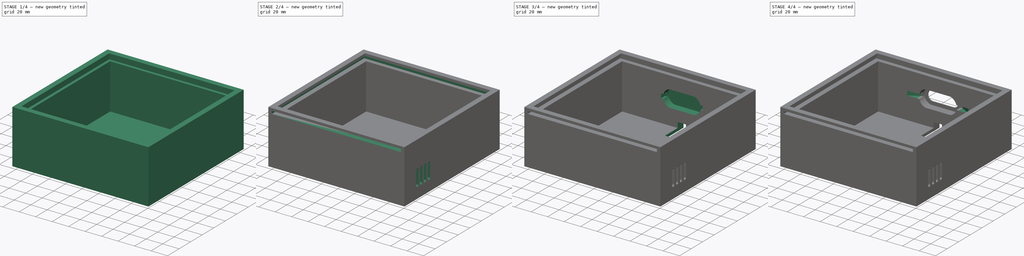
[diagram: build sequence overview — one tinted view per stage of 4, left to right]
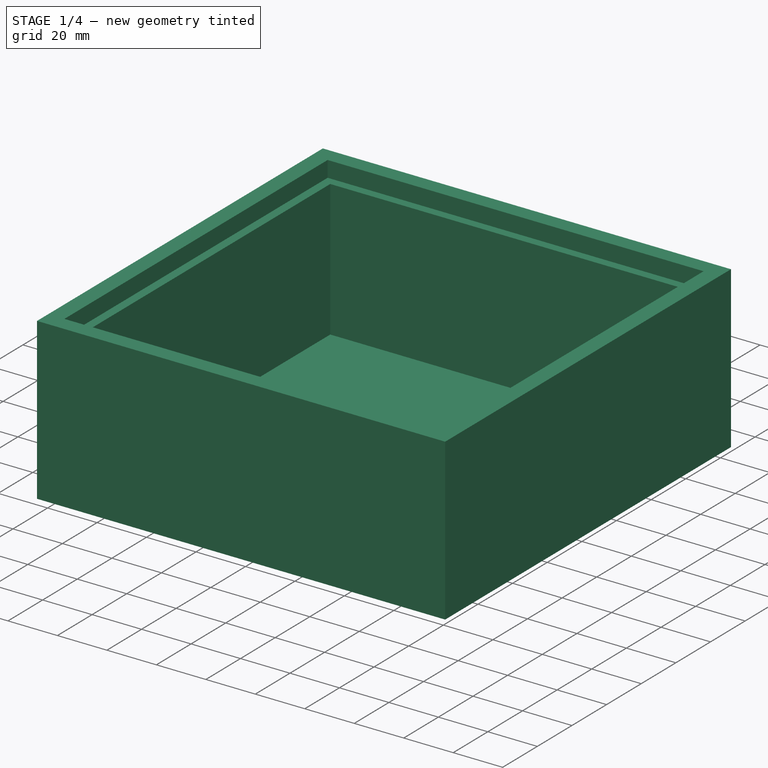
[diagram: stage 1 of 4 — iso view after this stage's code; geometry added in this stage tinted green]
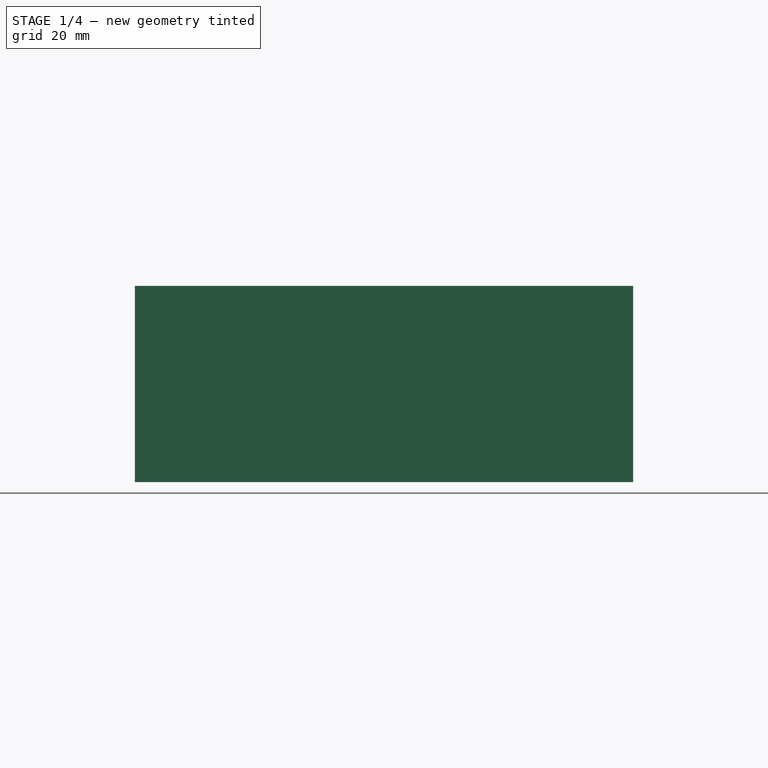
[diagram: stage 1 of 4 — front view after this stage's code; geometry added in this stage tinted green]
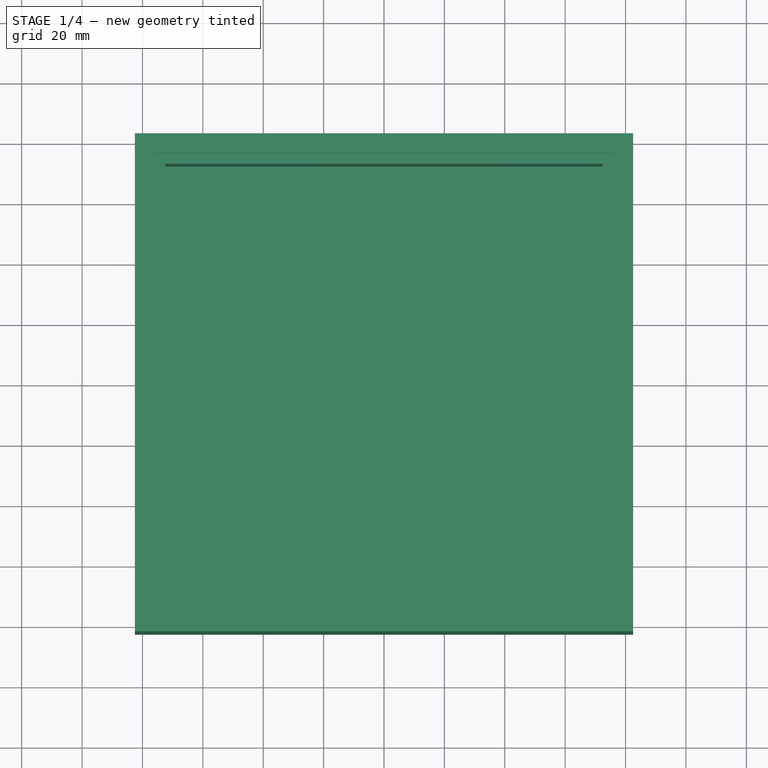
[diagram: stage 1 of 4 — top view after this stage's code; geometry added in this stage tinted green]
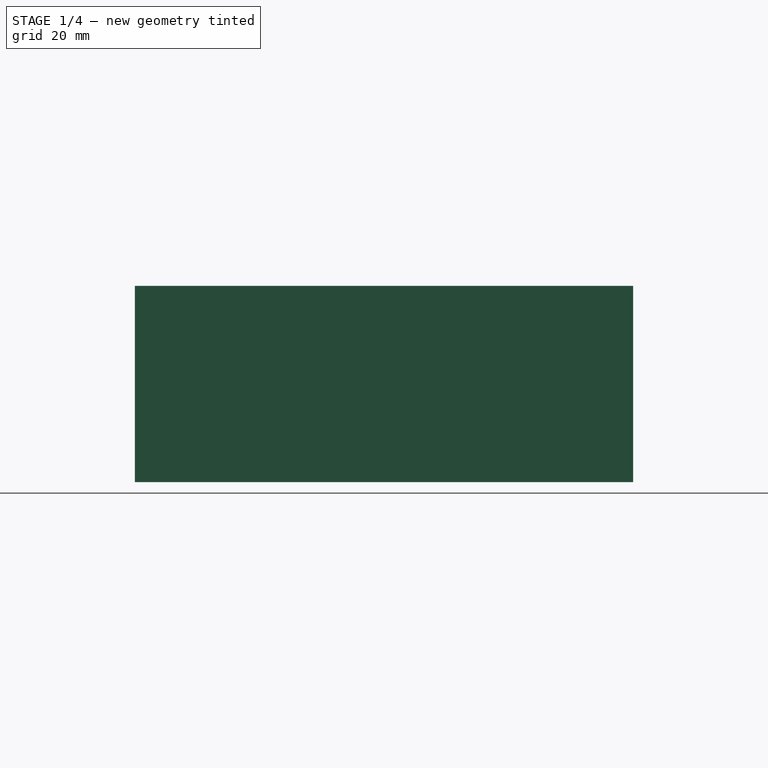
[diagram: stage 1 of 4 — right view after this stage's code; geometry added in this stage tinted green]
FCSTD DOCUMENT  (FreeCAD 1.0R39285 (Git))
Label: Box10
License: All rights reserved
LicenseURL: https://en.wikipedia.org/wiki/All_rights_reserved
objects: Sketcher::SketchObject×10, PartDesign::Pocket×8, PartDesign::Chamfer×2, PartDesign::Pad×1, PartDesign::LinearPattern×1, PartDesign::Body×1
note: 56 computed .brp shape members not serialized (recipe doc carries the construction recipe); baked Part::Feature solids carry a one-line shape summary decoded from their .brp

FEATURE [Sketcher::SketchObject] Sketch
  ArcFitTolerance = 1e-06
  AttachmentSupport = -> [XY_Plane]
  FullyConstrained = true
  MakeInternals = false
  MapMode = 5
  sketch-geometry (5):
    g0: LineSegment StartX=-82.5 StartY=-82.5 StartZ=0 EndX=82.5 EndY=-82.5 EndZ=0
    g1: LineSegment StartX=82.5 StartY=-82.5 StartZ=0 EndX=82.5 EndY=82.5 EndZ=0
    g2: LineSegment StartX=82.5 StartY=82.5 StartZ=0 EndX=-82.5 EndY=82.5 EndZ=0
    g3: LineSegment StartX=-82.5 StartY=82.5 StartZ=0 EndX=-82.5 EndY=-82.5 EndZ=0
    g4: GeomPoint [constr] X=0 Y=0 Z=0
  constraints (12):
    c: Coincident(g0,g1)
    c: Coincident(g1,g2)
    c: Coincident(g2,g3)
    c: Coincident(g3,g0)
    c: Horizontal(g0)
    c: Horizontal(g2)
    c: Vertical(g1)
    c: Vertical(g3)
    c: Symmetric(g2,g0,g4)
    c: Distance(g1,g3) = 165
    c: Distance(g0,g2) = 165
    c: Coincident(g4,g-1)
FEATURE [PartDesign::Pad] Pad
  Direction = (0,0,1)
  Length = 65
  Length2 = 10
  Profile = -> Sketch
  ReferenceAxis = -> Sketch [N_Axis]
  Refine = true
  Suppressed = false
  Type = 0
FEATURE [Sketcher::SketchObject] Sketch001
  ArcFitTolerance = 1e-06
  AttachmentSupport = -> [Pad]
  FullyConstrained = true
  MakeInternals = false
  MapMode = 5
  Placement = pos=(0,0,65) rot=(0,0,1;0rad)
FEATURE [Sketcher::SketchObject] Sketch002  label="Lithograpy edge"
  ArcFitTolerance = 1e-06
  AttachmentSupport = -> [Pad]
  FullyConstrained = true
  MakeInternals = false
  MapMode = 5
  Placement = pos=(0,0,65) rot=(0,0,1;0rad)
  sketch-geometry (5):
    g0: LineSegment StartX=-76 StartY=-76 StartZ=0 EndX=76 EndY=-76 EndZ=0
    g1: LineSegment StartX=76 StartY=-76 StartZ=0 EndX=76 EndY=76 EndZ=0
    g2: LineSegment StartX=76 StartY=76 StartZ=0 EndX=-76 EndY=76 EndZ=0
    g3: LineSegment StartX=-76 StartY=76 StartZ=0 EndX=-76 EndY=-76 EndZ=0
    g4: GeomPoint [constr] X=0 Y=0 Z=0
  constraints (12):
    c: Coincident(g0,g1)
    c: Coincident(g1,g2)
    c: Coincident(g2,g3)
    c: Coincident(g3,g0)
    c: Horizontal(g0)
    c: Horizontal(g2)
    c: Vertical(g1)
    c: Vertical(g3)
    c: Symmetric(g2,g0,g4)
    c: Distance(g1,g3) = 152
    c: Distance(g0,g2) = 152
    c: Coincident(g4,g-1)
FEATURE [PartDesign::Pocket] Pocket
  BaseFeature = -> Pad
  Direction = (0,0,-1)
  Length = 6.5
  Length2 = 5
  Profile = -> Sketch002
  ReferenceAxis = -> Sketch002 [N_Axis]
  Refine = true
  Suppressed = false
  Type = 0
FEATURE [Sketcher::SketchObject] Sketch003  label="Light edge"
  ArcFitTolerance = 1e-06
  AttachmentSupport = -> [Pocket]
  FullyConstrained = true
  MakeInternals = false
  MapMode = 5
  Placement = pos=(0,0,58.5) rot=(0,0,1;0rad)
  sketch-geometry (5):
    g0: LineSegment StartX=-72.5 StartY=-72.5 StartZ=0 EndX=72.5 EndY=-72.5 EndZ=0
    g1: LineSegment StartX=72.5 StartY=-72.5 StartZ=0 EndX=72.5 EndY=72.5 EndZ=0
    g2: LineSegment StartX=72.5 StartY=72.5 StartZ=0 EndX=-72.5 EndY=72.5 EndZ=0
    g3: LineSegment StartX=-72.5 StartY=72.5 StartZ=0 EndX=-72.5 EndY=-72.5 EndZ=0
    g4: GeomPoint [constr] X=0 Y=0 Z=0
  constraints (12):
    c: Coincident(g0,g1)
    c: Coincident(g1,g2)
    c: Coincident(g2,g3)
    c: Coincident(g3,g0)
    c: Horizontal(g0)
    c: Horizontal(g2)
    c: Vertical(g1)
    c: Vertical(g3)
    c: Symmetric(g2,g0,g4)
    c: Distance(g1,g3) = 145
    c: Distance(g0,g2) = 145
    c: Coincident(g4,g-1)
FEATURE [PartDesign::Pocket] Pocket001
  BaseFeature = -> Pocket
  Direction = (0,0,-1)
  Length = 55
  Length2 = 5
  Profile = -> Sketch003
  ReferenceAxis = -> Sketch003 [N_Axis]
  Refine = true
  Suppressed = false
  Type = 0
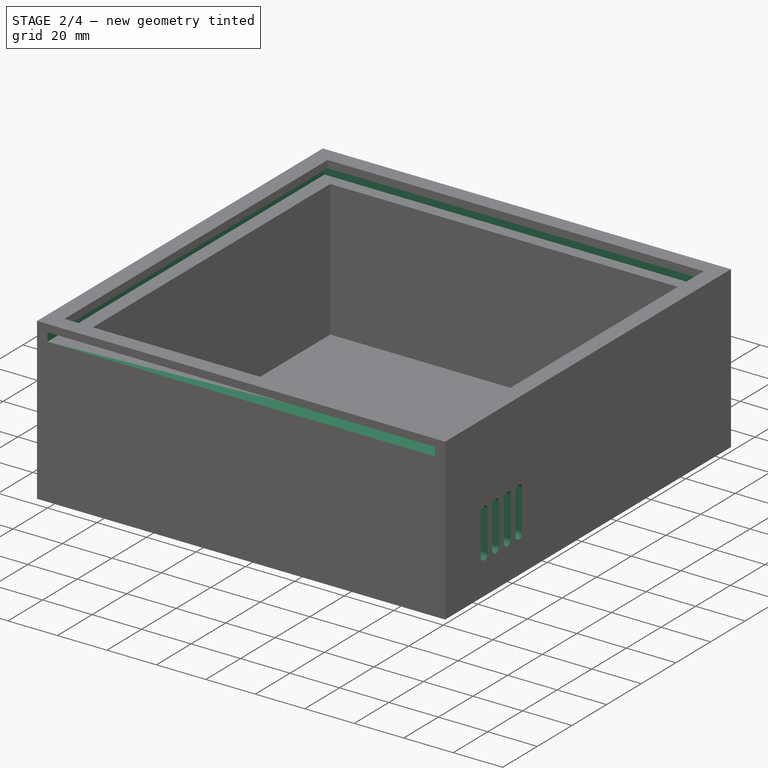
[diagram: stage 2 of 4 — iso view after this stage's code; geometry added in this stage tinted green]
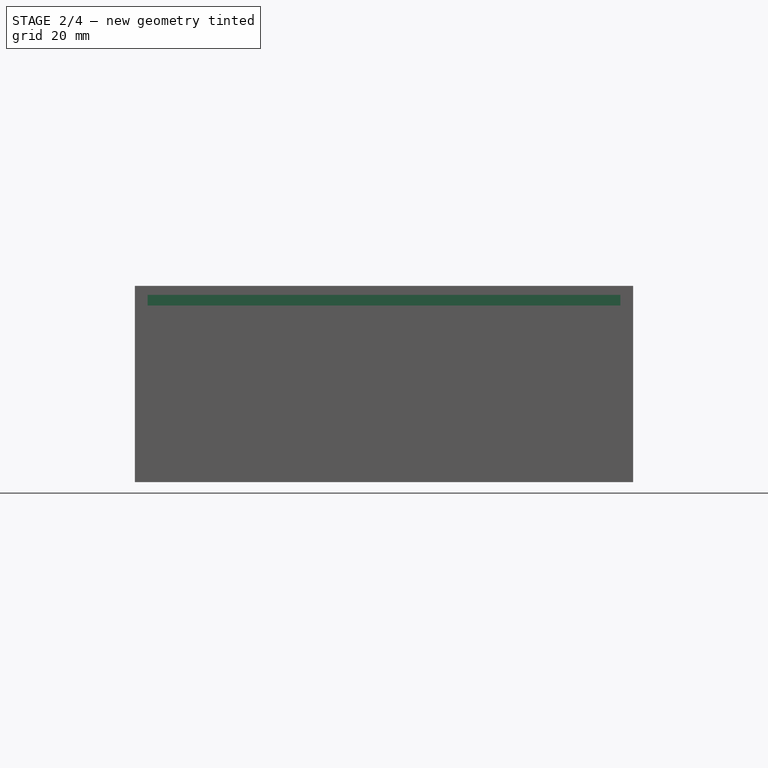
[diagram: stage 2 of 4 — front view after this stage's code; geometry added in this stage tinted green]
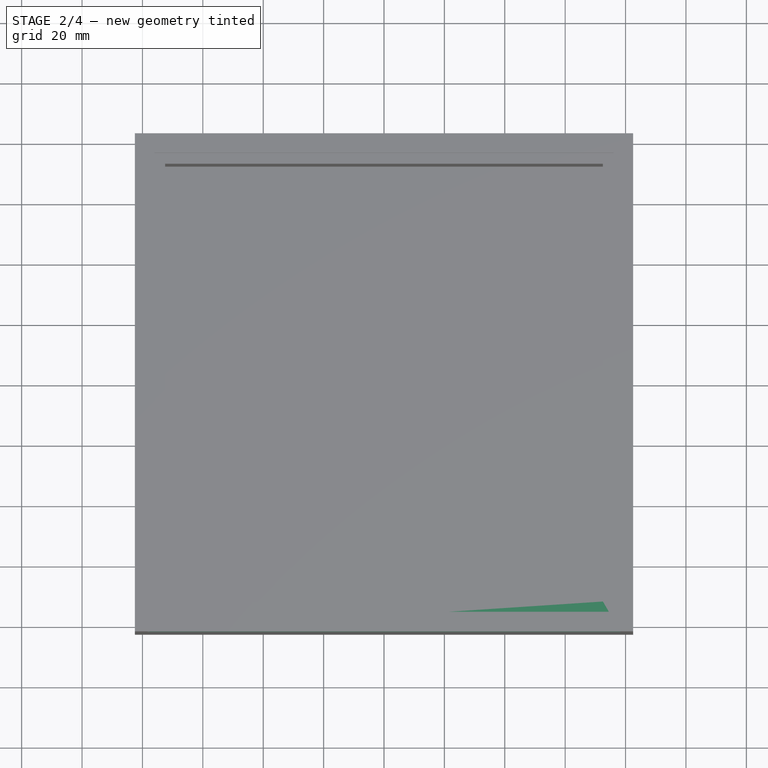
[diagram: stage 2 of 4 — top view after this stage's code; geometry added in this stage tinted green]
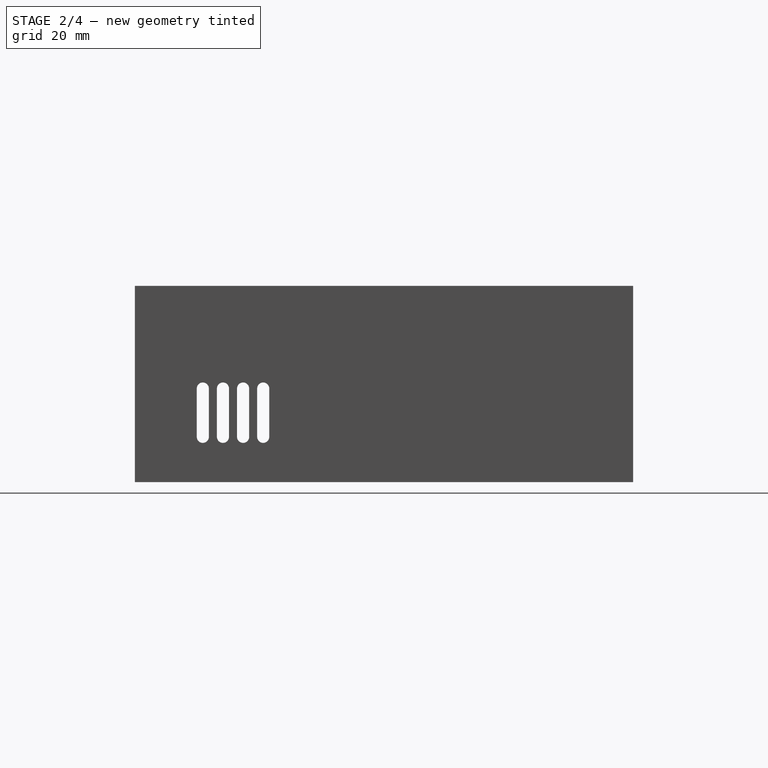
[diagram: stage 2 of 4 — right view after this stage's code; geometry added in this stage tinted green]
FEATURE [Sketcher::SketchObject] Sketch005  label="Lithography sliding slot"
  ArcFitTolerance = 1e-06
  FullyConstrained = true
  MakeInternals = false
  MapMode = 5
  Placement = pos=(0,-82.5,0) rot=(1,0,0;1.5708rad)
  sketch-geometry (5):
    g0: LineSegment StartX=-78.3 StartY=58.5 StartZ=0 EndX=78.3 EndY=58.5 EndZ=0
    g1: LineSegment StartX=78.3 StartY=58.5 StartZ=0 EndX=78.3 EndY=62 EndZ=0
    g2: LineSegment StartX=78.3 StartY=62 StartZ=0 EndX=-78.3 EndY=62 EndZ=0
    g3: LineSegment StartX=-78.3 StartY=62 StartZ=0 EndX=-78.3 EndY=58.5 EndZ=0
    g4: GeomPoint [constr] X=0 Y=60.25 Z=0
  constraints (13):
    c: Coincident(g0,g1)
    c: Coincident(g1,g2)
    c: Coincident(g2,g3)
    c: Coincident(g3,g0)
    c: Horizontal(g0)
    c: Horizontal(g2)
    c: Vertical(g1)
    c: Vertical(g3)
    c: Symmetric(g2,g0,g4)
    c: Distance(g1,g3) = 156.6
    c: Distance(g0,g2) = 3.5
    c: PointOnObject(g4,g-2)
    c: Distance(g-3,g0) = 6.5
FEATURE [PartDesign::Pocket] Pocket003
  BaseFeature = -> Pocket001
  Direction = (0,1,-2e-16)
  Length = 160
  Length2 = 5
  Profile = -> Sketch005
  ReferenceAxis = -> Sketch005 [N_Axis]
  Refine = true
  Suppressed = false
  Type = 0
FEATURE [Sketcher::SketchObject] Sketch007  label="Ventilation holes"
  ArcFitTolerance = 1e-06
  AttachmentSupport = -> [Pocket003]
  FullyConstrained = true
  MakeInternals = false
  MapMode = 5
  Placement = pos=(-82.5,0,0) rot=(0.57735,-0.57735,-0.57735;2.0944rad)
  sketch-geometry (4):
    g0: ArcOfCircle CenterX=60 CenterY=15 CenterZ=0 NormalX=0 NormalY=0 NormalZ=1 AngleXU=0 Radius=2 StartAngle=3.14159 EndAngle=6.28319
    g1: ArcOfCircle CenterX=60 CenterY=31 CenterZ=0 NormalX=0 NormalY=0 NormalZ=1 AngleXU=0 Radius=2 StartAngle=-9e-16 EndAngle=3.14159
    g2: LineSegment StartX=58 StartY=15 StartZ=0 EndX=58 EndY=31 EndZ=0
    g3: LineSegment StartX=62 StartY=15 StartZ=0 EndX=62 EndY=31 EndZ=0
  constraints (10):
    c: Tangent(g0,g2) = 1.5708
    c: Tangent(g0,g3) = -1.5708
    c: Tangent(g1,g2) = 1.5708
    c: Tangent(g1,g3) = -1.5708
    c: Equal(g0,g1)
    c: Vertical(g3)
    c: Distance(g0,g1) = 16
    c: Radius(g0) = 2
    c: DistanceX(g1,g-1) = -60
    c: DistanceY(g-1,g0) = 15
FEATURE [PartDesign::Pocket] Pocket004
  BaseFeature = -> Pocket003
  Direction = (1,0,0)
  Length = 5
  Length2 = 5
  Profile = -> Sketch007
  ReferenceAxis = -> Sketch007 [N_Axis]
  Refine = true
  Suppressed = false
  Type = 1
FEATURE [PartDesign::LinearPattern] LinearPattern
  BaseFeature = -> Pocket004
  Direction = -> Y_Axis
  Length = 20
  Mode = 0
  Occurrences = 4
  Offset = 6.66667
  Originals = -> [Pocket004]
  Refine = true
  Suppressed = false
  TransformMode = 0
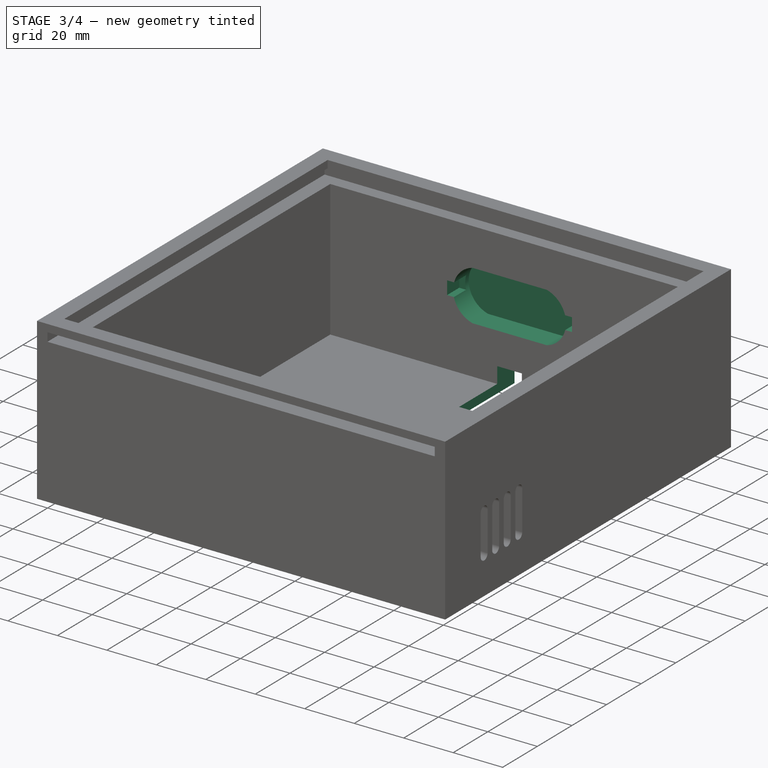
[diagram: stage 3 of 4 — iso view after this stage's code; geometry added in this stage tinted green]
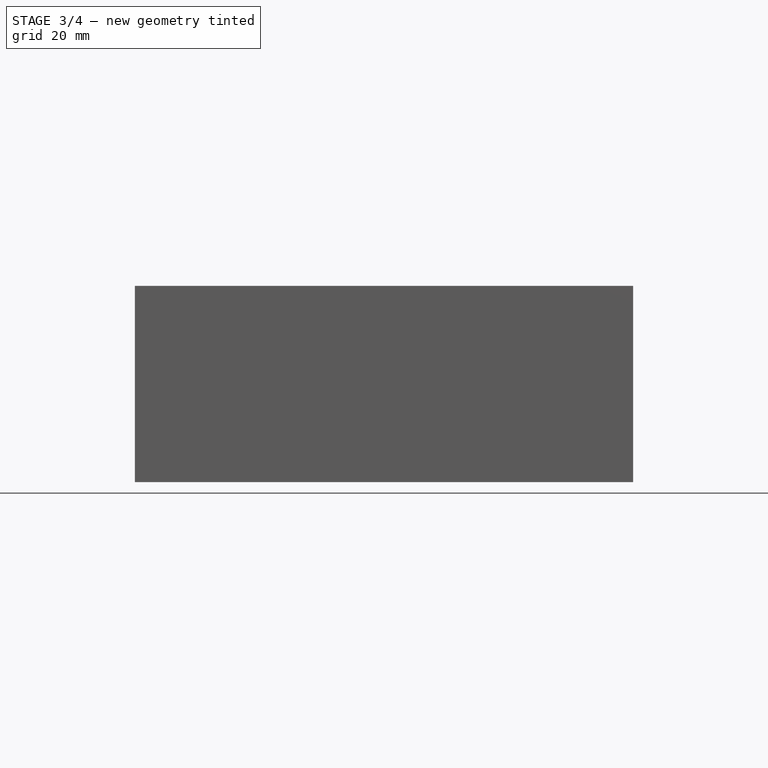
[diagram: stage 3 of 4 — front view after this stage's code; geometry added in this stage tinted green]
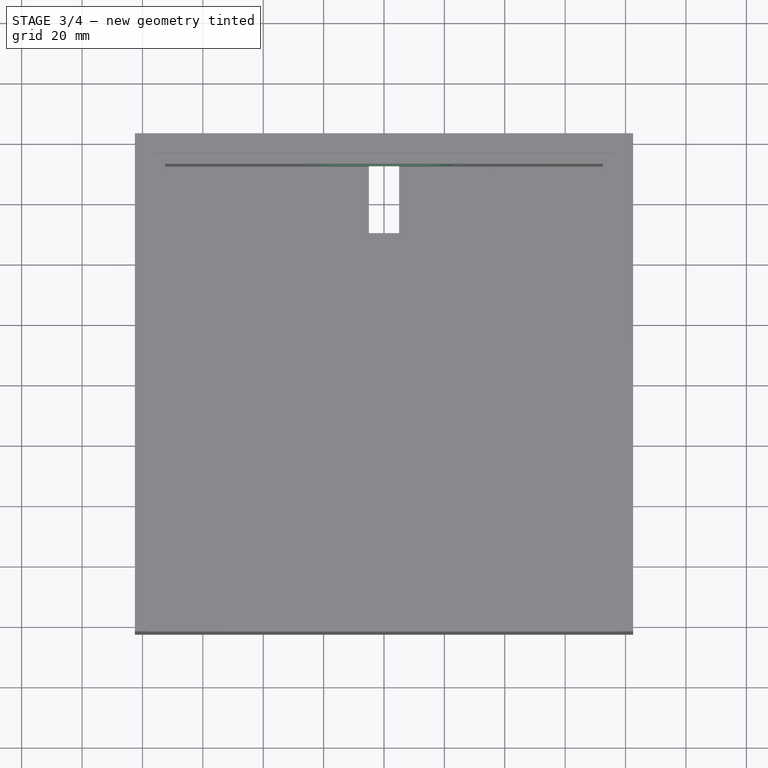
[diagram: stage 3 of 4 — top view after this stage's code; geometry added in this stage tinted green]
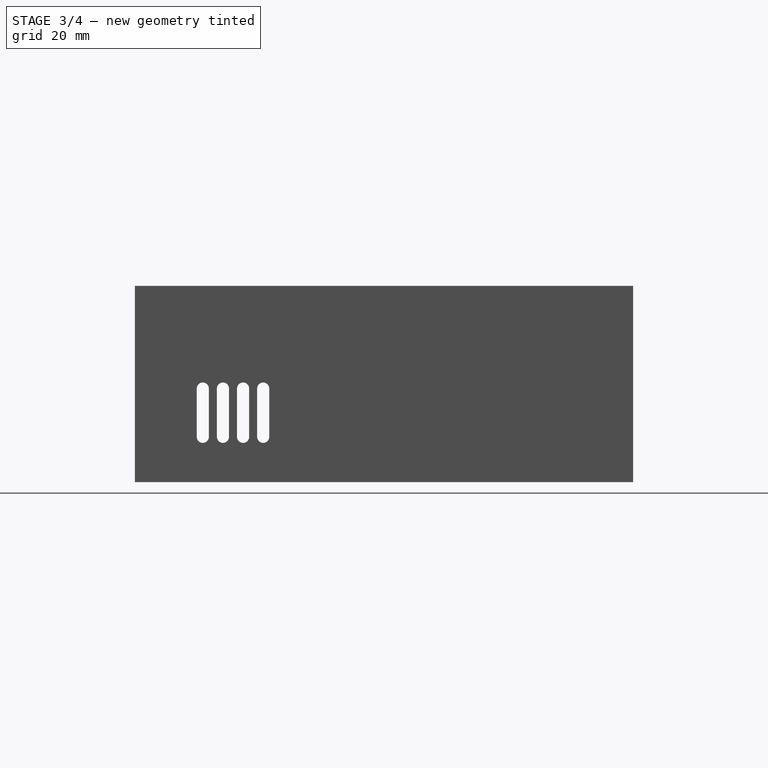
[diagram: stage 3 of 4 — right view after this stage's code; geometry added in this stage tinted green]
FEATURE [Sketcher::SketchObject] Sketch008  label="Cabel holes"
  ArcFitTolerance = 1e-06
  AttachmentSupport = -> [LinearPattern]
  ExternalGeometry = -> [LinearPattern]
  FullyConstrained = true
  MakeInternals = false
  MapMode = 5
  Placement = pos=(0,82.5,0) rot=(0,0.707107,0.707107;3.14159rad)
  sketch-geometry (5):
    g0: LineSegment StartX=-5 StartY=0 StartZ=0 EndX=5 EndY=0 EndZ=0
    g1: LineSegment StartX=5 StartY=0 StartZ=0 EndX=5 EndY=10 EndZ=0
    g2: LineSegment StartX=5 StartY=10 StartZ=0 EndX=-5 EndY=10 EndZ=0
    g3: LineSegment StartX=-5 StartY=10 StartZ=0 EndX=-5 EndY=0 EndZ=0
    g4: GeomPoint [constr] X=0 Y=5 Z=0
  constraints (13):
    c: Coincident(g0,g1)
    c: Coincident(g1,g2)
    c: Coincident(g2,g3)
    c: Coincident(g3,g0)
    c: Horizontal(g0)
    c: Horizontal(g2)
    c: Vertical(g1)
    c: Vertical(g3)
    c: Symmetric(g2,g0,g4)
    c: Distance(g1,g3) = 10
    c: Distance(g0,g2) = 10
    c: PointOnObject(g4,g-2)
    c: Horizontal(g0,g-3)
FEATURE [PartDesign::Pocket] Pocket005
  BaseFeature = -> LinearPattern
  Direction = (0,-1,2e-16)
  Length = 32
  Length2 = 5
  Profile = -> Sketch008
  ReferenceAxis = -> Sketch008 [N_Axis]
  Refine = true
  Suppressed = false
  Type = 0
FEATURE [Sketcher::SketchObject] Sketch012  label="Switch hole"
  ArcFitTolerance = 1e-06
  AttachmentSupport = -> [Pocket005]
  ExternalGeometry = -> [Pocket005]
  FullyConstrained = true
  MakeInternals = false
  MapMode = 5
  Placement = pos=(0,72.5,0) rot=(1,0,0;1.5708rad)
  sketch-geometry (4):
    g0: ArcOfCircle CenterX=-12.355 CenterY=33.125 CenterZ=0 NormalX=0 NormalY=0 NormalZ=1 AngleXU=0 Radius=10.4597 StartAngle=1.82447 EndAngle=4.45871
    g1: ArcOfCircle CenterX=12.355 CenterY=33.125 CenterZ=0 NormalX=0 NormalY=0 NormalZ=1 AngleXU=0 Radius=10.4699 StartAngle=4.96976 EndAngle=7.59661
    g2: LineSegment StartX=-14.98 StartY=23 StartZ=0 EndX=15.02 EndY=23 EndZ=0
    g3: LineSegment StartX=-14.98 StartY=43.25 StartZ=0 EndX=15.02 EndY=43.25 EndZ=0
  constraints (13):
    c: Distance(g2,g-3) = 13
    c: Parallel(g2,g3)
    c: Perpendicular(g-2,g3)
    c: Distance(g2,g3) = 20.25
    c: Coincident(g0,g3)
    c: Coincident(g0,g2)
    c: Coincident(g1,g3)
    c: Coincident(g1,g2)
    c: Vertical(g0,g0)
    c: DistanceX(g0,g1) = 30
    c: Symmetric(g1,g0,g-2)
    c: Distance(g0,g1) = 24.71
    c: Distance(g1,g-2) = 15.02
FEATURE [PartDesign::Pocket] Pocket006
  BaseFeature = -> Pocket005
  Direction = (0,1,-2e-16)
  Length = 9
  Length2 = 5
  Profile = -> Sketch012
  ReferenceAxis = -> Sketch012 [N_Axis]
  Refine = true
  Suppressed = false
  Type = 0
FEATURE [Sketcher::SketchObject] Sketch013  label="Switch cabel duckt"
  ArcFitTolerance = 1e-06
  AttachmentSupport = -> [Pocket006]
  ExternalGeometry = -> [Pocket006]
  FullyConstrained = true
  MakeInternals = false
  MapMode = 5
  Placement = pos=(0,72.5,0) rot=(1,0,0;1.5708rad)
  sketch-geometry (5):
    g0: LineSegment StartX=-25.25 StartY=30.55 StartZ=0 EndX=25.25 EndY=30.55 EndZ=0
    g1: LineSegment StartX=25.25 StartY=30.55 StartZ=0 EndX=25.25 EndY=35.95 EndZ=0
    g2: LineSegment StartX=25.25 StartY=35.95 StartZ=0 EndX=-25.25 EndY=35.95 EndZ=0
    g3: LineSegment StartX=-25.25 StartY=35.95 StartZ=0 EndX=-25.25 EndY=30.55 EndZ=0
    g4: GeomPoint [constr] X=0 Y=33.25 Z=0
  constraints (13):
    c: Coincident(g0,g1)
    c: Coincident(g1,g2)
    c: Coincident(g2,g3)
    c: Coincident(g3,g0)
    c: Horizontal(g0)
    c: Horizontal(g2)
    c: Vertical(g1)
    c: Vertical(g3)
    c: Symmetric(g2,g0,g4)
    c: Distance(g1,g3) = 50.5
    c: Distance(g0,g2) = 5.4
    c: PointOnObject(g4,g-2)
    c: Distance(g4,g-3) = 23.25
FEATURE [PartDesign::Pocket] Pocket007
  BaseFeature = -> Pocket006
  Direction = (0,1,-2e-16)
  Length = 7
  Length2 = 5
  Profile = -> Sketch013
  ReferenceAxis = -> Sketch013 [N_Axis]
  Refine = true
  Suppressed = false
  Type = 0
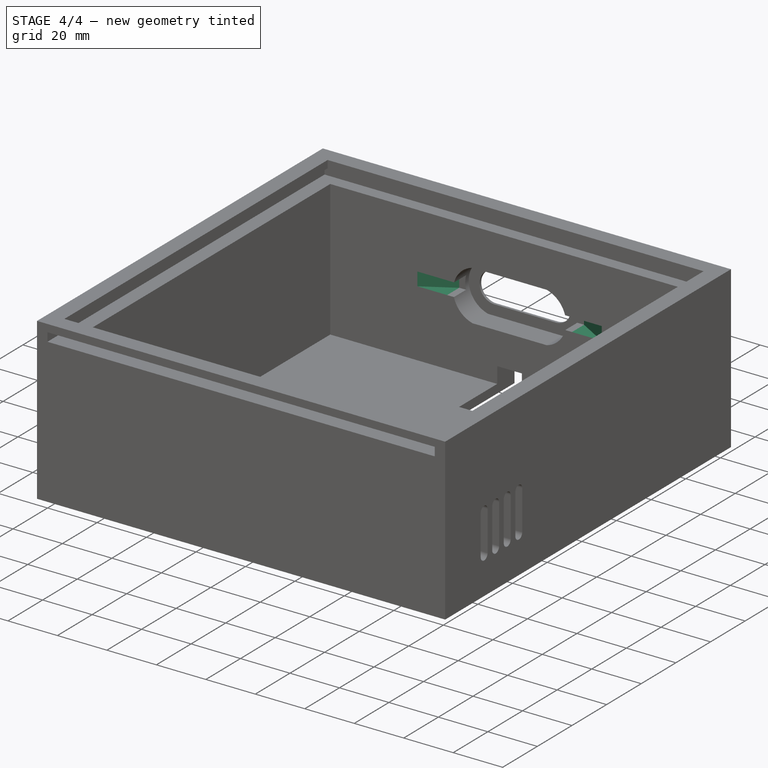
[diagram: stage 4 of 4 — iso view after this stage's code; geometry added in this stage tinted green]
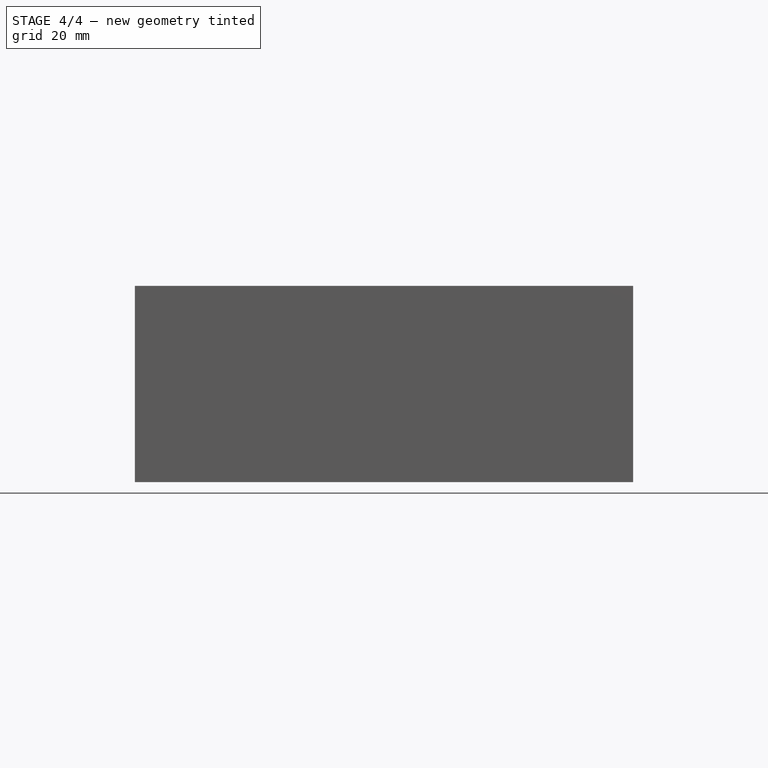
[diagram: stage 4 of 4 — front view after this stage's code; geometry added in this stage tinted green]
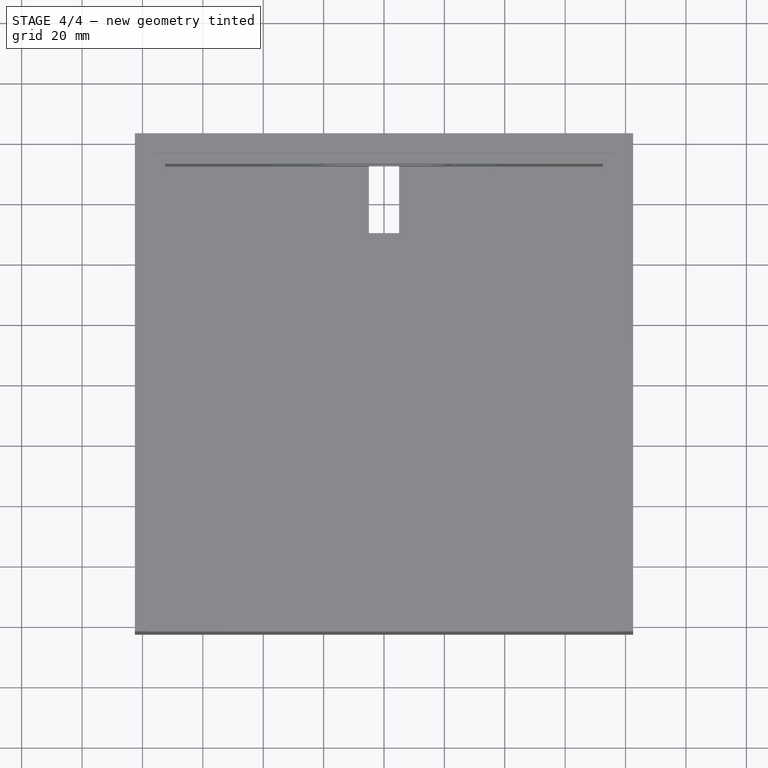
[diagram: stage 4 of 4 — top view after this stage's code; geometry added in this stage tinted green]
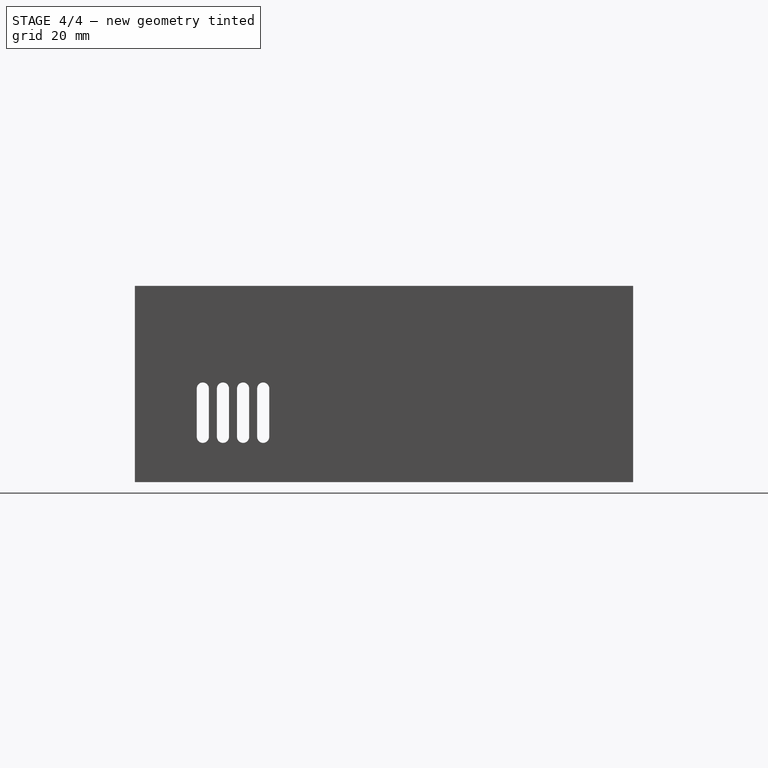
[diagram: stage 4 of 4 — right view after this stage's code; geometry added in this stage tinted green]
FEATURE [PartDesign::Chamfer] Chamfer  label="Cabel slope 1"
  Angle = 30
  Base = -> Pocket007 [Edge171]
  BaseFeature = -> Pocket007
  ChamferType = 2
  FlipDirection = false
  Refine = true
  Size = 12
  Size2 = 1
  SupportTransform = false
  Suppressed = false
  UseAllEdges = false
FEATURE [PartDesign::Chamfer] Chamfer001  label="Cabel slope 2"
  Angle = 30
  Base = -> Chamfer [Edge12]
  BaseFeature = -> Chamfer
  ChamferType = 2
  FlipDirection = false
  Refine = true
  Size = 12
  Size2 = 1
  SupportTransform = false
  Suppressed = false
  UseAllEdges = false
FEATURE [Sketcher::SketchObject] Sketch014  label="Button hole"
  ArcFitTolerance = 1e-06
  AttachmentSupport = -> [Chamfer001]
  ExternalGeometry = -> [Chamfer001]
  FullyConstrained = true
  MakeInternals = false
  MapMode = 5
  Placement = pos=(0,81.5,-6.31e-14) rot=(1,0,0;1.5708rad)
  sketch-geometry (4):
    g0: LineSegment StartX=12.35 StartY=39.36 StartZ=0 EndX=-12.35 EndY=39.36 EndZ=0
    g1: LineSegment StartX=-12.35 StartY=27.15 StartZ=0 EndX=12.35 EndY=27.15 EndZ=0
    g2: ArcOfCircle CenterX=-12.35 CenterY=33.255 CenterZ=0 NormalX=0 NormalY=0 NormalZ=1 AngleXU=0 Radius=6.105 StartAngle=1.5708 EndAngle=4.71239
    g3: ArcOfCircle CenterX=12.35 CenterY=33.255 CenterZ=0 NormalX=0 NormalY=0 NormalZ=1 AngleXU=0 Radius=6.105 StartAngle=4.71239 EndAngle=7.85398
  constraints (14):
    c: Horizontal(g0)
    c: Horizontal(g1)
    c: Symmetric(g0,g1,g2)
    c: Symmetric(g1,g0,g3)
    c: Coincident(g3,g0)
    c: Coincident(g2,g0)
    c: Equal(g0,g1)
    c: DistanceY(g1,g0) = 12.21
    c: Distance(g1,g-3) = 4.15
    c: Distance(g2,g3) = 24.7
    c: Distance(g0,g-2) = 12.35
    c: Distance(g1,g-2) = 12.35
    c: Angle(g2) = 3.14159
    c: Angle(g3) = 3.14159
FEATURE [PartDesign::Pocket] Pocket008
  BaseFeature = -> Chamfer001
  Direction = (0,1,-2e-16)
  Length = 8.4
  Length2 = 5
  Profile = -> Sketch014
  ReferenceAxis = -> Sketch014 [N_Axis]
  Refine = true
  Suppressed = false
  Type = 1
FEATURE [PartDesign::Body] Body
  AllowCompound = false
  Group = -> [Sketch,Pad,Sketch001,Sketch002,Pocket,Sketch003,Pocket001,Sketch005,Pocket003,Sketch007,Pocket004,LinearPattern,Sketch008,Pocket005,Sketch012,Pocket006,Sketch013,Pocket007,Chamfer,Chamfer001,Sketch014,Pocket008]
  Origin = -> Origin
  Tip = -> Pocket008
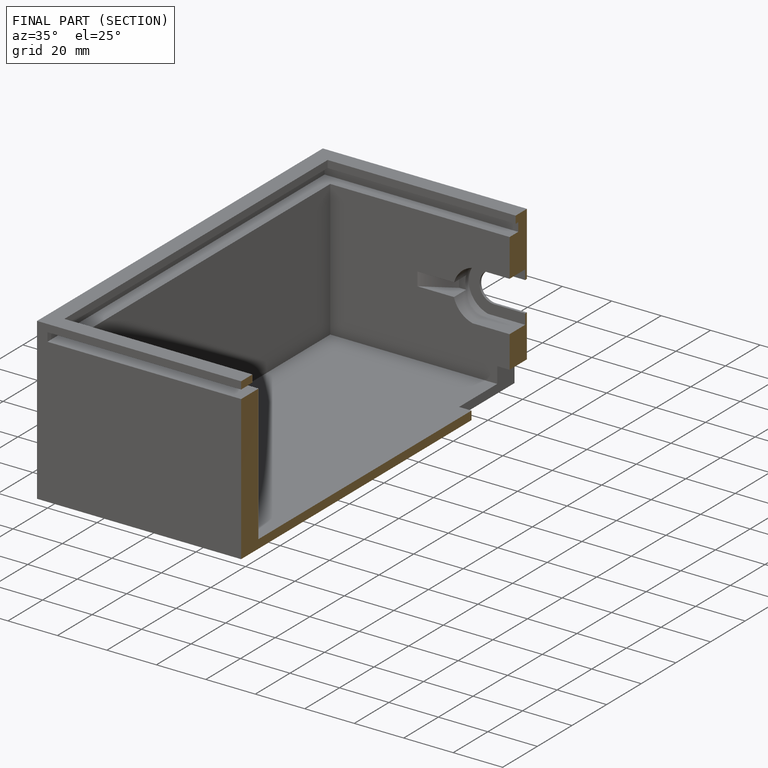
[diagram: finished part — half-section view (interior)]
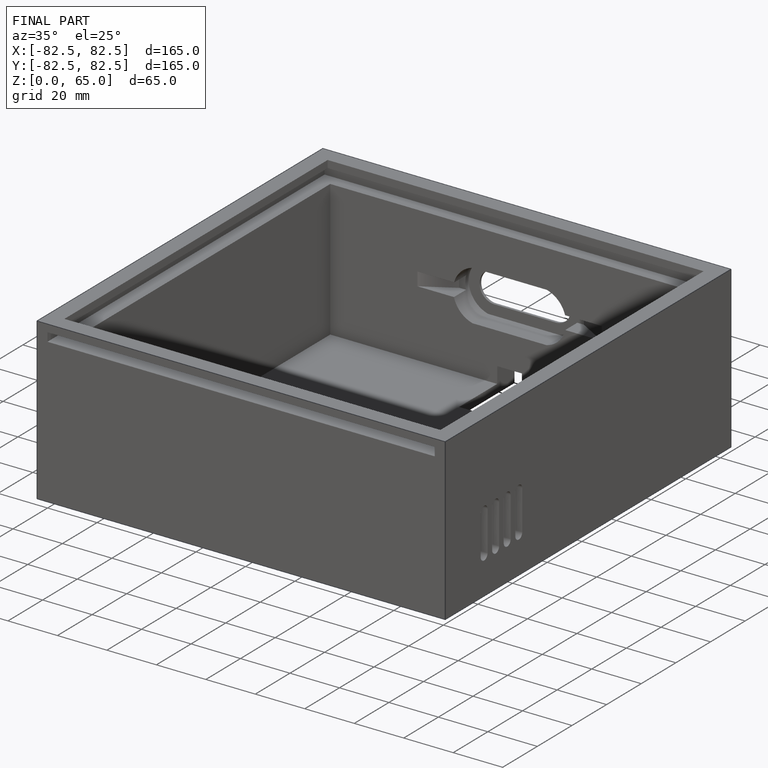
[diagram: finished part — iso view with bounding-box wireframe]
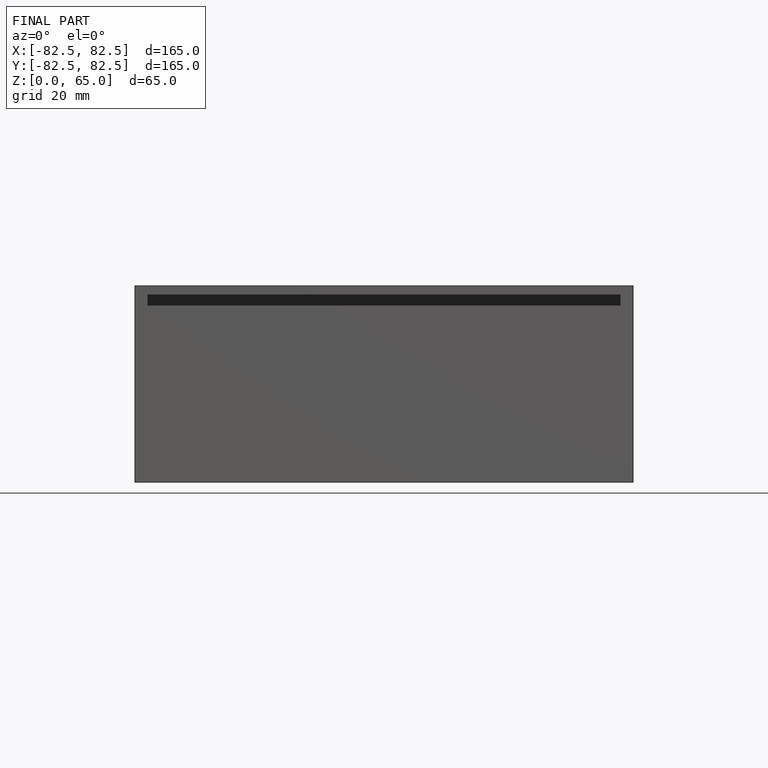
[diagram: finished part — front view with bounding-box wireframe]
